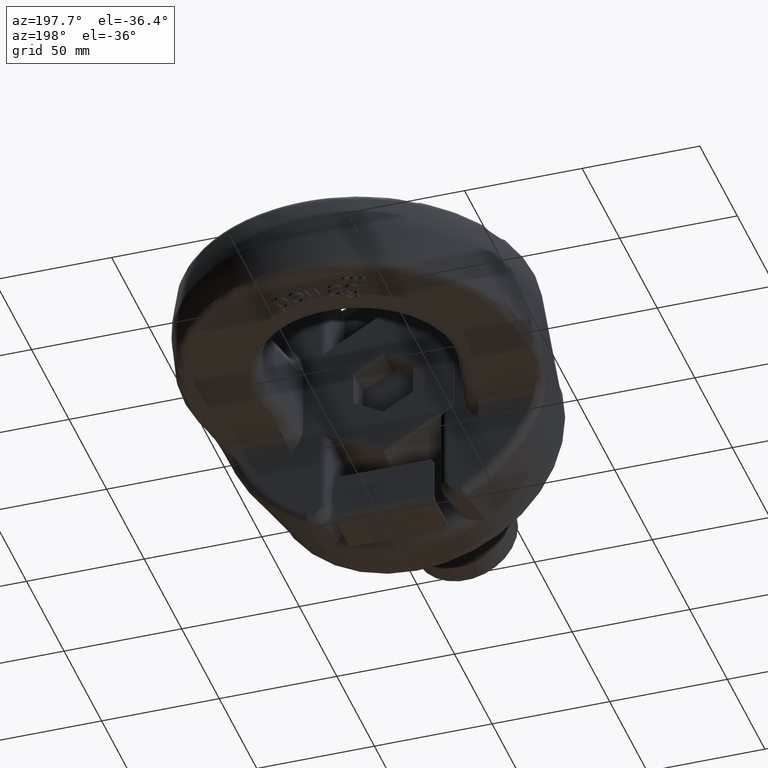
[diagram: clean part render]
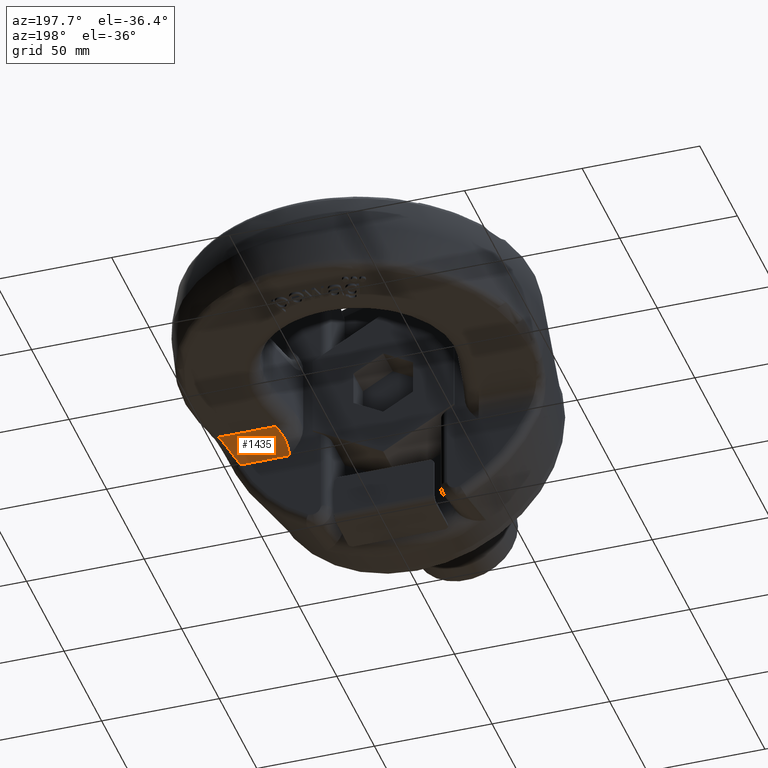
[diagram: same view with one face highlighted and labeled with its STEP entity id]
A machine part, auxiliary view. The second image highlights one B-rep face of the part: STEP entity #1435.
In plain terms, the highlighted cylindrical surface (edge-blend (fillet) strip) has radius 9 mm, axis along (1, 0, 0).
Its self-contained STEP definition (entity closure, byte-faithful):
#1055=ELLIPSE('',#5263,9.53843856273432,9.);
#1069=CYLINDRICAL_SURFACE('',#5264,9.);
#1203=FACE_OUTER_BOUND('',#1966,.T.);
#1435=ADVANCED_FACE('',(#1203),#1069,.F.);
#1966=EDGE_LOOP('',(#3381,#3382,#3383,#3384));
#2145=LINE('',#6722,#2425);
#2244=LINE('',#8245,#2552);
#2425=VECTOR('',#5473,1.);
#2552=VECTOR('',#5834,1.);
#3381=ORIENTED_EDGE('',*,*,#4366,.F.);
#3382=ORIENTED_EDGE('',*,*,#4646,.T.);
#3383=ORIENTED_EDGE('',*,*,#4606,.F.);
#3384=ORIENTED_EDGE('',*,*,#4647,.T.);
#3976=VERTEX_POINT('',#6721);
#3977=VERTEX_POINT('',#6723);
#4123=VERTEX_POINT('',#8244);
#4124=VERTEX_POINT('',#8246);
#4366=EDGE_CURVE('',#3976,#3977,#2145,.T.);
#4606=EDGE_CURVE('',#4123,#4124,#2244,.T.);
#4646=EDGE_CURVE('',#3976,#4124,#1055,.T.);
#4647=EDGE_CURVE('',#4123,#3977,#5025,.T.);
#5025=B_SPLINE_CURVE_WITH_KNOTS('',3,(#8472,#8473,#8474,#8475,#8476,#8477),
 .UNSPECIFIED.,.F.,.F.,(4,2,4),(0.,0.5,1.),.UNSPECIFIED.);
#5263=AXIS2_PLACEMENT_3D('',#8471,#5881,#5882);
#5264=AXIS2_PLACEMENT_3D('',#8478,#5883,#5884);
#5473=DIRECTION('',(1.,1.25106507477956E-15,2.34291072916505E-15));
#5834=DIRECTION('',(-1.,-1.25106507477956E-15,-2.34291072916505E-15));
#5881=DIRECTION('',(-0.94355065987027,0.3312282479777,-2.21065496452082E-15));
#5882=DIRECTION('',(0.3312282479777,0.943550659870271,7.76038215989494E-16));
#5883=DIRECTION('',(1.,1.25106507477956E-15,2.34291072916505E-15));
#5884=DIRECTION('',(1.5419764230905E-15,-1.,0.));
#6721=CARTESIAN_POINT('',(40.2492475377433,44.,-26.9999999999999));
#6722=CARTESIAN_POINT('',(34.317778535329,44.,-26.9999999999999));
#6723=CARTESIAN_POINT('',(60.910075453225,44.,-26.9999999999999));
#8244=CARTESIAN_POINT('',(67.5659516039047,53.,-17.9999999999999));
#8245=CARTESIAN_POINT('',(-152.,52.9999999999998,-18.0000000000004));
#8246=CARTESIAN_POINT('',(43.4086478313207,53.,-17.9999999999999));
#8471=CARTESIAN_POINT('',(43.4086478313207,53.,-26.9999999999999));
#8472=CARTESIAN_POINT('',(67.5659516039047,53.,-17.9999999999999));
#8473=CARTESIAN_POINT('',(66.8568395084638,50.4598969463647,-17.9999999999999));
#8474=CARTESIAN_POINT('',(65.8885442681176,48.0838581688882,-19.1052410225437));
#8475=CARTESIAN_POINT('',(63.625049081295,44.857094148755,-22.5068102517819));
#8476=CARTESIAN_POINT('',(62.2974512868095,44.,-24.7644135792164));
#8477=CARTESIAN_POINT('',(60.910075453225,44.,-26.9999999999999));
#8478=CARTESIAN_POINT('',(34.317778535329,53.,-26.9999999999999));